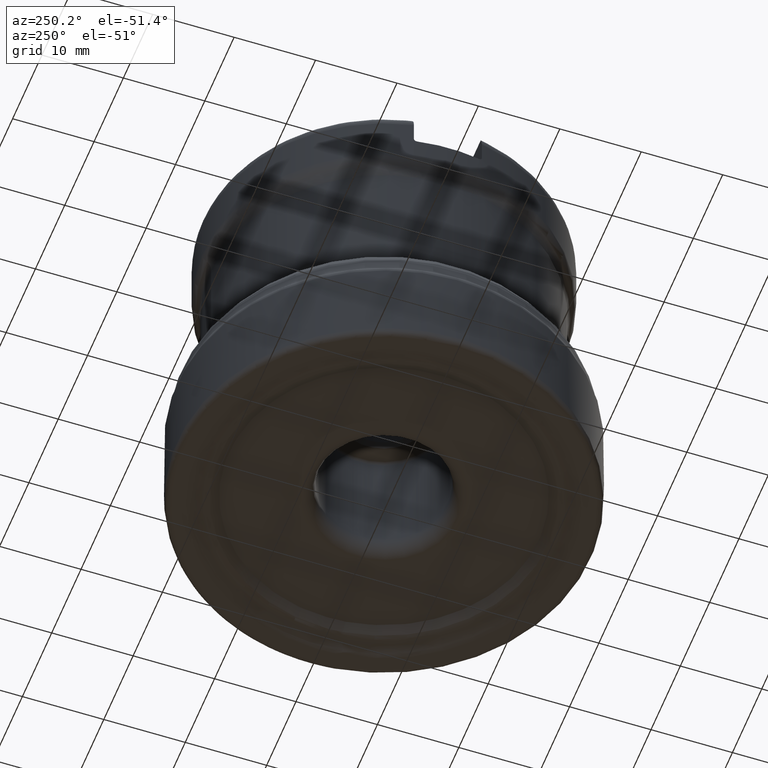
[diagram: clean part render]
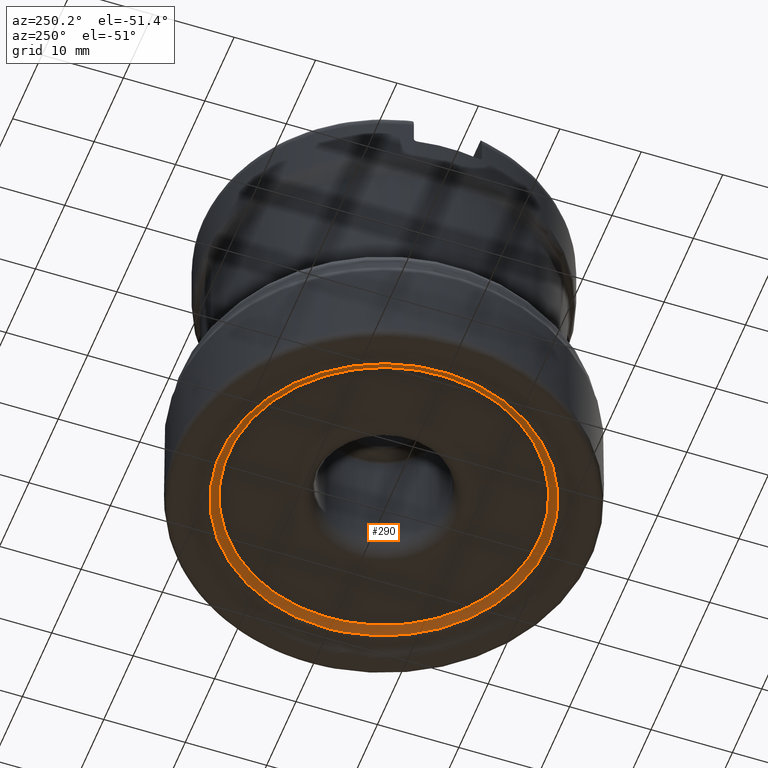
[diagram: same view with one face highlighted and labeled with its STEP entity id]
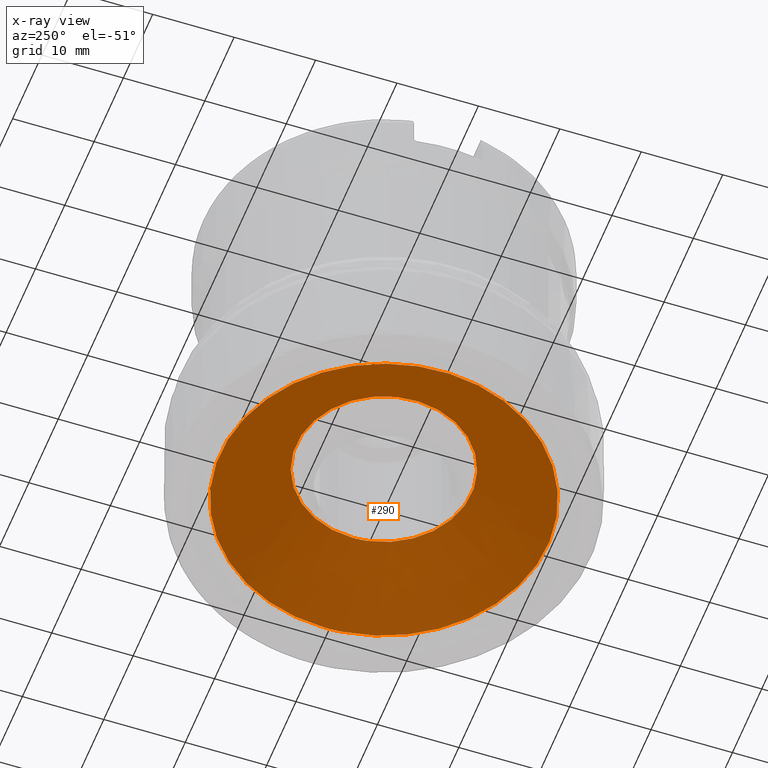
[diagram: x-ray of the same camera — body ghosted, the highlighted face saturated]
A machine part, auxiliary view. The second image highlights one B-rep face of the part: STEP entity #290.
The next image is the same camera in x-ray: the body ghosted, the highlighted face saturated — about 0% of this face is hidden behind the body in this view.
In plain terms, the highlighted face is a SurfaceOfRevolution surface.
Its self-contained STEP definition (entity closure, byte-faithful):
#132=SURFACE_OF_REVOLUTION('',#1128,#153);
#153=AXIS1_PLACEMENT('',#2476,#1506);
#290=ADVANCED_FACE('',(#450,#451),#132,.F.);
#450=FACE_BOUND('',#570,.T.);
#451=FACE_BOUND('',#571,.T.);
#570=EDGE_LOOP('',(#798));
#571=EDGE_LOOP('',(#799));
#798=ORIENTED_EDGE('',*,*,#1006,.T.);
#799=ORIENTED_EDGE('',*,*,#1007,.F.);
#892=VERTEX_POINT('',#2447);
#893=VERTEX_POINT('',#2461);
#1006=EDGE_CURVE('',#892,#892,#1063,.T.);
#1007=EDGE_CURVE('',#893,#893,#1064,.T.);
#1063=CIRCLE('',#1238,10.7732646291472);
#1064=CIRCLE('',#1239,20.1165450706966);
#1128=B_SPLINE_CURVE_WITH_KNOTS('',3,(#2462,#2463,#2464,#2465,#2466,#2467,
#2468,#2469,#2470,#2471,#2472,#2473,#2474,#2475),.UNSPECIFIED.,.F.,.F.,
(4,1,1,1,1,1,1,1,1,1,1,4),(0.,0.228057409693128,0.368730032744676,0.509402655796224,
0.650075278847771,0.720411590373545,0.755579746136432,0.790747901899319,
0.861084213425093,0.931420524950867,0.966588680713754,1.),.UNSPECIFIED.);
#1238=AXIS2_PLACEMENT_3D('',#2446,#1501,#1502);
#1239=AXIS2_PLACEMENT_3D('',#2460,#1504,#1505);
#1501=DIRECTION('',(0.,0.,1.));
#1502=DIRECTION('',(1.,0.,0.));
#1504=DIRECTION('',(0.,0.,1.));
#1505=DIRECTION('',(1.,0.,0.));
#1506=DIRECTION('',(0.,0.,1.));
#2446=CARTESIAN_POINT('',(0.,0.,6.4311979818387));
#2447=CARTESIAN_POINT('',(10.7732646291472,0.,6.4311979818387));
#2460=CARTESIAN_POINT('',(0.,0.,0.772169881067651));
#2461=CARTESIAN_POINT('',(20.1165450706966,0.,0.772169881067651));
#2462=CARTESIAN_POINT('',(20.0030922828995,-2.13347622607865,0.772169842241362));
#2463=CARTESIAN_POINT('',(19.2764904837335,-2.13483916370396,1.18321339826385));
#2464=CARTESIAN_POINT('',(18.1069297294367,-2.13543368752953,1.85705434967439));
#2465=CARTESIAN_POINT('',(16.5030440112749,-2.13280017594949,2.80817756352085));
#2466=CARTESIAN_POINT('',(15.1811390691879,-2.12855306430899,3.60757354809274));
#2467=CARTESIAN_POINT('',(14.0846934730201,-2.12338051209244,4.28215174564315));
#2468=CARTESIAN_POINT('',(13.319794464473,-2.11943482793824,4.7585460233859));
#2469=CARTESIAN_POINT('',(12.8833746905713,-2.11625215782996,5.03186316546735));
#2470=CARTESIAN_POINT('',(12.4464651865129,-2.10142933725743,5.30403534321621));
#2471=CARTESIAN_POINT('',(11.8999423065261,-2.06513277182337,5.64239072942258));
#2472=CARTESIAN_POINT('',(11.3534558570285,-2.00388969025343,5.97713356096288));
#2473=CARTESIAN_POINT('',(10.9221018948417,-1.9399874738355,6.23875581852396));
#2474=CARTESIAN_POINT('',(10.709307949197,-1.90831690480667,6.36811941636184));
#2475=CARTESIAN_POINT('',(10.6056717802722,-1.89287000577759,6.4311979818387));
#2476=CARTESIAN_POINT('',(0.,0.,0.));